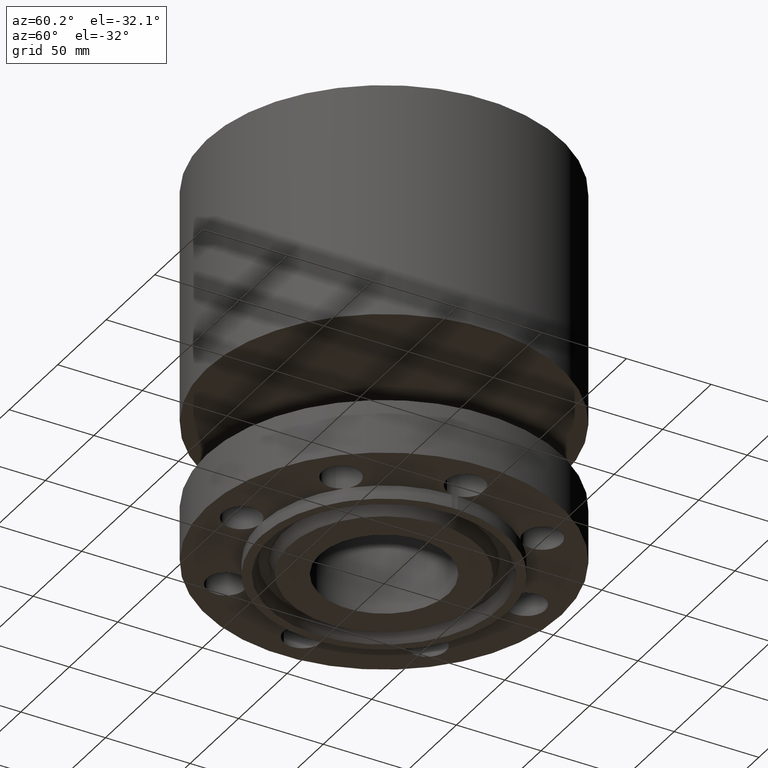
[diagram: clean part render]
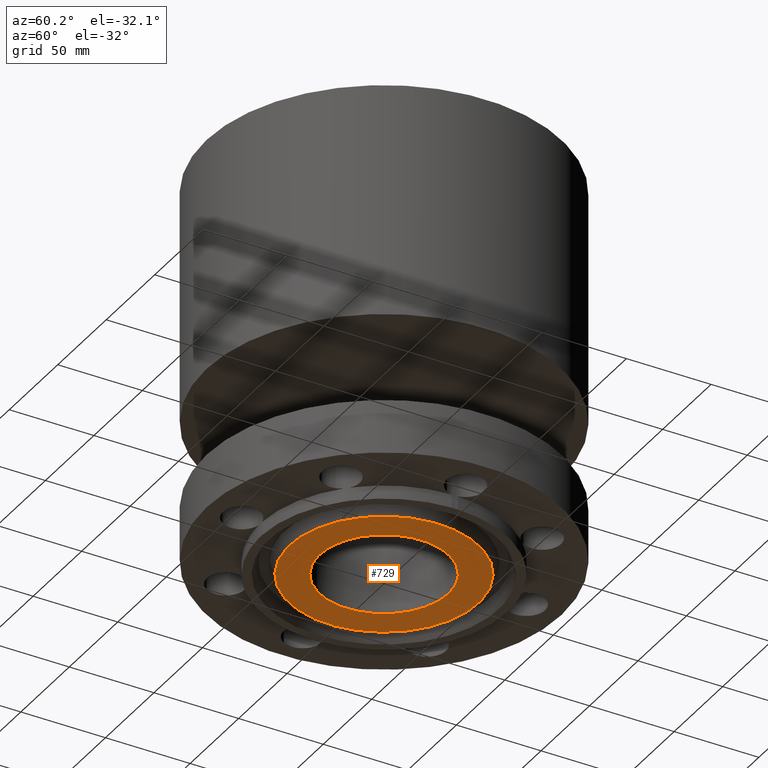
[diagram: same view with one face highlighted and labeled with its STEP entity id]
A machine part, auxiliary view. The second image highlights one B-rep face of the part: STEP entity #729.
In plain terms, the highlighted planar face has unit normal (0, 0, -1).
Its self-contained STEP definition (entity closure, byte-faithful):
#673=AXIS2_PLACEMENT_3D('Circle Axis2P3D',#671,#672,$) ;
#692=AXIS2_PLACEMENT_3D('Circle Axis2P3D',#690,#691,$) ;
#705=AXIS2_PLACEMENT_3D('Plane Axis2P3D',#702,#703,#704) ;
#709=AXIS2_PLACEMENT_3D('Circle Axis2P3D',#707,#708,$) ;
#718=AXIS2_PLACEMENT_3D('Circle Axis2P3D',#716,#717,$) ;
#668=CARTESIAN_POINT('Vertex',(0.719138307909,1.31637384284,-0.313000000001)) ;
#671=CARTESIAN_POINT('Axis2P3D Location',(0.,0.,-0.313000000001)) ;
#675=CARTESIAN_POINT('Vertex',(-0.719138307909,-1.31637384284,-0.313000000001)) ;
#690=CARTESIAN_POINT('Axis2P3D Location',(0.,0.,-0.313000000001)) ;
#702=CARTESIAN_POINT('Axis2P3D Location',(0.,1.50000000001,-0.313000000001)) ;
#707=CARTESIAN_POINT('Axis2P3D Location',(0.,0.,-0.313000000001)) ;
#711=CARTESIAN_POINT('Vertex',(-1.05617446155,-1.93331438385,-0.313000000001)) ;
#713=CARTESIAN_POINT('Vertex',(1.05617446155,1.93331438385,-0.313000000001)) ;
#716=CARTESIAN_POINT('Axis2P3D Location',(0.,0.,-0.313000000001)) ;
#672=DIRECTION('Axis2P3D Direction',(0.,0.,-0.0393700787402)) ;
#691=DIRECTION('Axis2P3D Direction',(0.,0.,-0.0393700787402)) ;
#703=DIRECTION('Axis2P3D Direction',(0.,0.,-0.0393700787402)) ;
#704=DIRECTION('Axis2P3D XDirection',(0.0393700787402,0.,0.)) ;
#708=DIRECTION('Axis2P3D Direction',(0.,0.,-0.0393700787402)) ;
#717=DIRECTION('Axis2P3D Direction',(0.,0.,-0.0393700787402)) ;
#722=ORIENTED_EDGE('',*,*,#715,.T.) ;
#723=ORIENTED_EDGE('',*,*,#720,.T.) ;
#726=ORIENTED_EDGE('',*,*,#677,.F.) ;
#727=ORIENTED_EDGE('',*,*,#694,.F.) ;
#728=FACE_BOUND('',#725,.T.) ;
#729=ADVANCED_FACE('PartBody',(#724,#728),#706,.T.) ;
#674=CIRCLE('generated circle',#673,1.50000000001) ;
#693=CIRCLE('generated circle',#692,1.50000000001) ;
#710=CIRCLE('generated circle',#709,2.20300000001) ;
#719=CIRCLE('generated circle',#718,2.20300000001) ;
#677=EDGE_CURVE('',#669,#676,#674,.T.) ;
#694=EDGE_CURVE('',#676,#669,#693,.T.) ;
#715=EDGE_CURVE('',#712,#714,#710,.T.) ;
#720=EDGE_CURVE('',#714,#712,#719,.T.) ;
#721=EDGE_LOOP('',(#722,#723)) ;
#725=EDGE_LOOP('',(#726,#727)) ;
#724=FACE_OUTER_BOUND('',#721,.T.) ;
#706=PLANE('',#705) ;
#669=VERTEX_POINT('',#668) ;
#676=VERTEX_POINT('',#675) ;
#712=VERTEX_POINT('',#711) ;
#714=VERTEX_POINT('',#713) ;